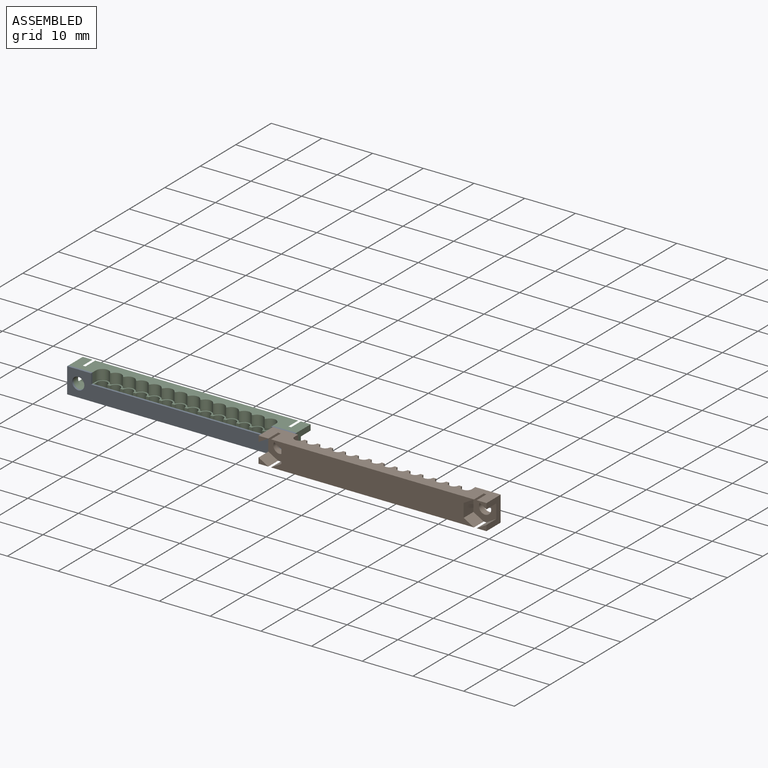
[diagram: assembled view]
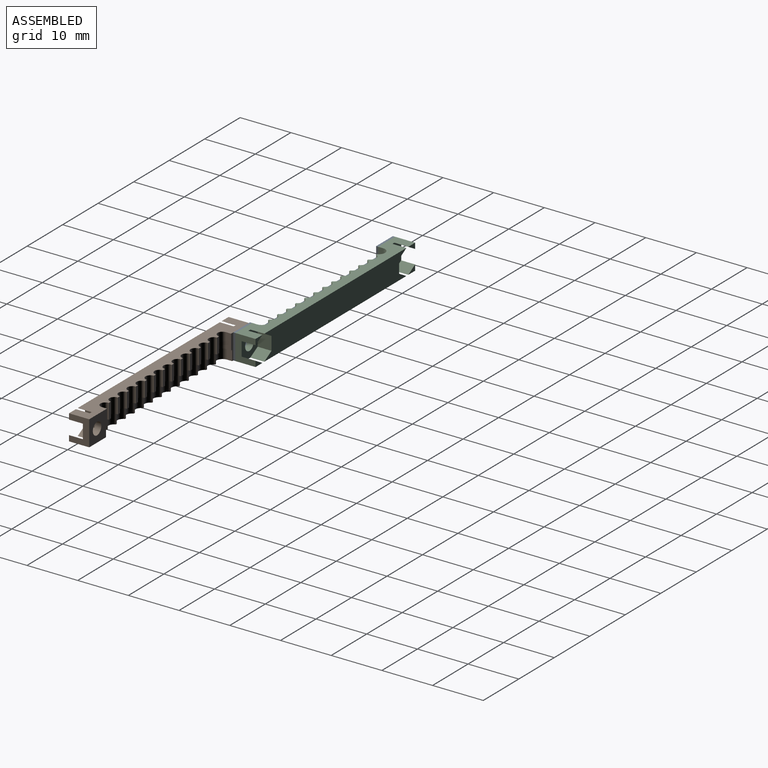
[diagram: assembled view, second angle]
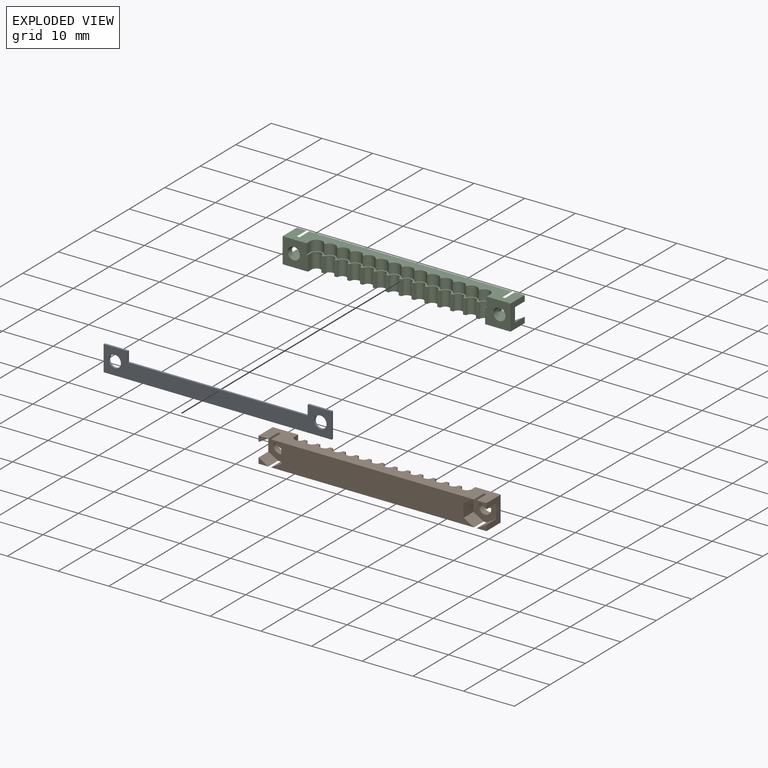
[diagram: exploded view]
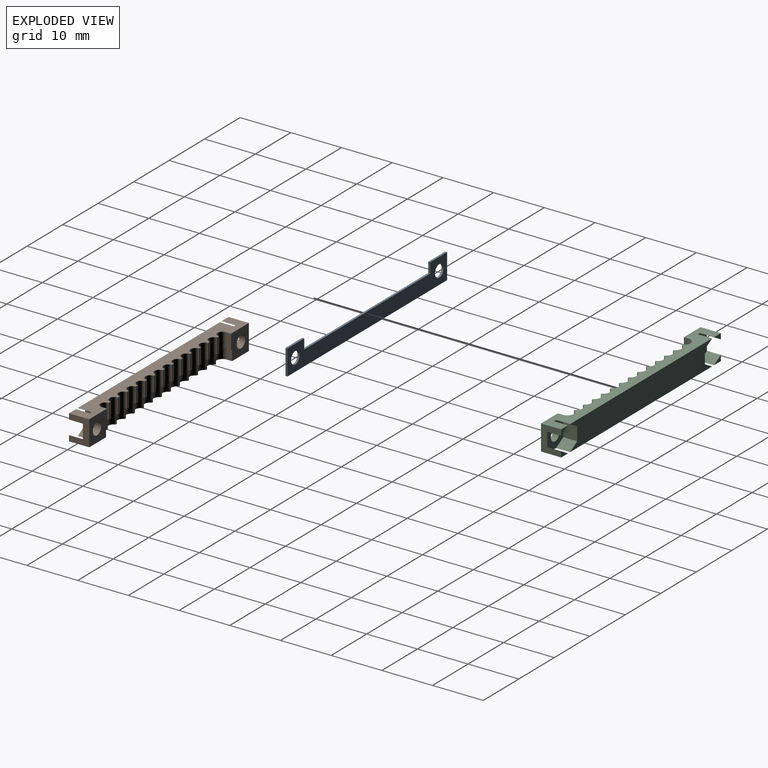
[diagram: exploded view, second angle]
ASSEMBLY  parts=3 mates=2
PART A: 12 faces, bbox 45x0.4x5 mm
  f0: plane 4.72x0.4mm, normal (0,0,1), area 1.9mm2, adj f1,f9,f10,f11
  f1: plane 5x0.4mm, normal (-1,0,0), area 2mm2, adj f0,f2,f10,f11
  f2: plane 44.96x0.4mm, normal (0,0,-1), area 18mm2, adj f1,f3,f10,f11
  f3: plane 5x0.4mm, normal (1,0,0), area 2mm2, adj f2,f4,f10,f11
  f4: plane 4.72x0.4mm, normal (0,0,1), area 1.9mm2, adj f3,f5,f10,f11
  f5: plane 2x0.4mm, normal (-1,0,0), area 0.8mm2, adj f4,f6,f10,f11
  f6: plane 35.52x0.4mm, normal (0,0,1), area 14.2mm2, adj f5,f9,f10,f11
  f7: cylinder r=1.2mm len=2.4mm, axis (0,1,0), area 3mm2, adj f10,f11
  f8: cylinder r=1.2mm len=2.4mm, axis (0,1,0), area 3mm2, adj f10,f11
  f9: plane 2x0.4mm, normal (1,0,0), area 0.8mm2, adj f0,f6,f10,f11
  f10: plane 44.96x5mm, normal (0,-1,0), area 144.7mm2, adj f0,f1,f2,f3,f4,f5,f6,f7
  f11: plane 44.96x5mm, normal (0,1,0), area 144.7mm2, adj f0,f1,f2,f3,f4,f5,f6,f7
PART B: 84 faces, bbox 45x5x4 mm
  f0: plane 1.93x1.11mm, normal (0,0,1), area 1.1mm2, adj f31,f35,f70
  f1: plane 40.02x5mm, normal (0,0,1), area 184.6mm2, adj f34,f35,f65,f68,f69,f71,f73,f74
  f2: plane 1.93x1.11mm, normal (0,0,1), area 1.1mm2, adj f33,f35,f66
  f3: plane 1.93x1.11mm, normal (0,0,1), area 1.1mm2, adj f33,f34,f64
  f4: plane 3x0.6mm, normal (0,0,-1), area 1.8mm2, adj f5,f30,f35,f36
  f5: cylinder r=0.97mm len=3mm, axis (0,1,0), area 9.1mm2, adj f4,f6,f35,f36
  f6: plane 3x0.6mm, normal (0,0,-1), area 1.8mm2, adj f5,f7,f35,f36
  f7: cylinder r=0.97mm len=3mm, axis (0,1,0), area 9.1mm2, adj f6,f8,f35,f36
  f8: plane 3x0.6mm, normal (0,0,-1), area 1.8mm2, adj f7,f9,f35,f36
  f9: cylinder r=0.97mm len=3mm, axis (0,1,0), area 9.1mm2, adj f8,f10,f35,f36
  f10: plane 3x0.6mm, normal (0,0,-1), area 1.8mm2, adj f9,f11,f35,f36
  f11: cylinder r=0.97mm len=3mm, axis (0,1,0), area 9.1mm2, adj f10,f12,f35,f36
  f12: plane 3x0.6mm, normal (0,0,-1), area 1.8mm2, adj f11,f13,f35,f36
  f13: cylinder r=0.97mm len=3mm, axis (0,1,0), area 9.1mm2, adj f12,f14,f35,f36
  f14: plane 3x0.6mm, normal (0,0,-1), area 1.8mm2, adj f13,f15,f35,f36
  f15: cylinder r=0.97mm len=3mm, axis (0,1,0), area 9.1mm2, adj f14,f16,f35,f36
  f16: plane 3x0.6mm, normal (0,0,-1), area 1.8mm2, adj f15,f17,f35,f36
  f17: cylinder r=0.97mm len=3mm, axis (0,1,0), area 9.1mm2, adj f16,f18,f35,f36
  f18: plane 3x0.6mm, normal (0,0,-1), area 1.8mm2, adj f17,f19,f35,f36
  f19: cylinder r=0.97mm len=3mm, axis (0,1,0), area 9.1mm2, adj f18,f20,f35,f36
  f20: plane 3x0.6mm, normal (0,0,-1), area 1.8mm2, adj f19,f21,f35,f36
  f21: cylinder r=0.97mm len=3mm, axis (0,1,0), area 9.1mm2, adj f20,f22,f35,f36
  f22: plane 3x0.6mm, normal (0,0,-1), area 1.8mm2, adj f21,f23,f35,f36
  f23: cylinder r=0.97mm len=3mm, axis (0,1,0), area 9.1mm2, adj f22,f24,f35,f36
  f24: plane 3x0.6mm, normal (0,0,-1), area 1.8mm2, adj f23,f25,f35,f36
  f25: cylinder r=0.97mm len=3mm, axis (0,1,0), area 9.1mm2, adj f24,f26,f35,f36
  f26: plane 3x0.6mm, normal (0,0,-1), area 1.8mm2, adj f25,f27,f35,f36
  f27: cylinder r=0.97mm len=3mm, axis (0,1,0), area 9.1mm2, adj f26,f28,f35,f36
  f28: plane 3x0.6mm, normal (0,0,-1), area 1.8mm2, adj f27,f29,f35,f36
  f29: cylinder r=0.97mm len=3mm, axis (0,1,0), area 9.1mm2, adj f28,f35,f36,f82
  f30: cylinder r=0.97mm len=3mm, axis (0,1,0), area 9.1mm2, adj f4,f35,f36,f79
  f31: plane 5x4mm, normal (1,0,0), area 12.4mm2, adj f0,f32,f34,f35,f70,f72,f75,f83
  f32: plane 1.93x1.11mm, normal (0,0,1), area 1.1mm2, adj f31,f34,f75
  f33: plane 5x4mm, normal (-1,0,0), area 12.4mm2, adj f2,f3,f34,f35,f64,f66,f67,f80
  f34: plane 44.96x4mm, normal (0,-1,0), area 106.3mm2, adj f1,f3,f31,f32,f33,f37,f38,f39
  f35: plane 44.96x4mm, normal (0,1,0), area 121.2mm2, adj f0,f1,f2,f4,f5,f6,f7,f8
  f36: plane 35.52x2.25mm, normal (0,-1,0), area 14.9mm2, adj f4,f5,f6,f7,f8,f9,f10,f11
  f37: cylinder r=1.25mm len=2.4mm, axis (0,-1,0), area 6.8mm2, adj f34,f36,f39,f81
  f38: cylinder r=1.25mm len=2.4mm, axis (0,-1,0), area 6.8mm2, adj f34,f36,f63,f78
  f39: plane 2x0.25mm, normal (0,0,-1), area 0.5mm2, adj f34,f36,f37,f40
  f40: cylinder r=1.25mm len=2.29mm, axis (0,-1,0), area 5.8mm2, adj f34,f36,f39,f41
  f41: plane 2x0.25mm, normal (0,0,-1), area 0.5mm2, adj f34,f36,f40,f42
  f42: cylinder r=1.25mm len=2.29mm, axis (0,-1,0), area 5.8mm2, adj f34,f36,f41,f43
  f43: plane 2x0.25mm, normal (0,0,-1), area 0.5mm2, adj f34,f36,f42,f44
  f44: cylinder r=1.25mm len=2.29mm, axis (0,-1,0), area 5.8mm2, adj f34,f36,f43,f45
  f45: plane 2x0.25mm, normal (0,0,-1), area 0.5mm2, adj f34,f36,f44,f46
  f46: cylinder r=1.25mm len=2.29mm, axis (0,-1,0), area 5.8mm2, adj f34,f36,f45,f47
  f47: plane 2x0.25mm, normal (0,0,-1), area 0.5mm2, adj f34,f36,f46,f48
  f48: cylinder r=1.25mm len=2.29mm, axis (0,-1,0), area 5.8mm2, adj f34,f36,f47,f49
  f49: plane 2x0.25mm, normal (0,0,-1), area 0.5mm2, adj f34,f36,f48,f50
  f50: cylinder r=1.25mm len=2.29mm, axis (0,-1,0), area 5.8mm2, adj f34,f36,f49,f51
  f51: plane 2x0.25mm, normal (0,0,-1), area 0.5mm2, adj f34,f36,f50,f52
  f52: cylinder r=1.25mm len=2.29mm, axis (0,-1,0), area 5.8mm2, adj f34,f36,f51,f53
  f53: plane 2x0.25mm, normal (0,0,-1), area 0.5mm2, adj f34,f36,f52,f54
  f54: cylinder r=1.25mm len=2.29mm, axis (0,-1,0), area 5.8mm2, adj f34,f36,f53,f55
  f55: plane 2x0.25mm, normal (0,0,-1), area 0.5mm2, adj f34,f36,f54,f56
  f56: cylinder r=1.25mm len=2.29mm, axis (0,-1,0), area 5.8mm2, adj f34,f36,f55,f57
  f57: plane 2x0.25mm, normal (0,0,-1), area 0.5mm2, adj f34,f36,f56,f58
  f58: cylinder r=1.25mm len=2.29mm, axis (0,-1,0), area 5.8mm2, adj f34,f36,f57,f59
  f59: plane 2x0.25mm, normal (0,0,-1), area 0.5mm2, adj f34,f36,f58,f60
  f60: cylinder r=1.25mm len=2.29mm, axis (0,-1,0), area 5.8mm2, adj f34,f36,f59,f61
  f61: plane 2x0.25mm, normal (0,0,-1), area 0.5mm2, adj f34,f36,f60,f62
  f62: cylinder r=1.25mm len=2.29mm, axis (0,-1,0), area 5.8mm2, adj f34,f36,f61,f63
  f63: plane 2x0.25mm, normal (0,0,-1), area 0.5mm2, adj f34,f36,f38,f62
  f64: plane 2.75x1.93mm, normal (0.5,0.87,0), area 6.1mm2, adj f3,f33,f34,f67
  f65: plane 2.75x2.03mm, normal (-0.5,-0.87,0), area 6.4mm2, adj f1,f35,f67,f68
  f66: plane 2.75x1.93mm, normal (0.5,-0.87,0), area 6.1mm2, adj f2,f33,f35,f67
  f67: plane 5x4.5mm, normal (0,0,1), area 13.4mm2, adj f33,f34,f35,f64,f65,f66,f68,f69
  f68: plane 2.75x2.66mm, normal (-1,0,0), area 7.3mm2, adj f1,f65,f67,f69
  f69: plane 2.75x2.03mm, normal (-0.5,0.87,0), area 6.4mm2, adj f1,f34,f67,f68
  f70: plane 2.75x1.93mm, normal (-0.5,-0.87,0), area 6.1mm2, adj f0,f31,f35,f72
  f71: plane 2.75x2.03mm, normal (0.5,-0.87,0), area 6.4mm2, adj f1,f35,f72,f73
  f72: plane 5x4.5mm, normal (0,0,1), area 13.4mm2, adj f31,f34,f35,f70,f71,f73,f74,f75
  f73: plane 2.75x2.66mm, normal (1,0,0), area 7.3mm2, adj f1,f71,f72,f74
  f74: plane 2.75x2.03mm, normal (0.5,0.87,0), area 6.4mm2, adj f1,f34,f72,f73
  f75: plane 2.75x1.93mm, normal (-0.5,0.87,0), area 6.1mm2, adj f31,f32,f34,f72
  f76: cylinder r=1.2mm len=2.4mm, axis (0,0,-1), area 9.4mm2, adj f72,f83
  f77: cylinder r=1.2mm len=2.4mm, axis (0,0,-1), area 9.4mm2, adj f67,f80
  f78: plane 2x1mm, normal (1,0,0), area 2mm2, adj f34,f36,f38,f80
  f79: plane 3x1mm, normal (1,0,0), area 3mm2, adj f30,f35,f36,f80
  f80: plane 5x5mm, normal (0,0,-1), area 19.9mm2, adj f33,f34,f35,f36,f77,f78,f79
  f81: plane 2x1mm, normal (-1,0,0), area 2mm2, adj f34,f36,f37,f83
  f82: plane 3x1mm, normal (-1,0,0), area 3mm2, adj f29,f35,f36,f83
  f83: plane 5x5mm, normal (0,0,-1), area 19.9mm2, adj f31,f34,f35,f36,f76,f81,f82
PART C: same geometry as B
PLACE A t=(-3.51,-25.65,-9.31)mm
PLACE B rot(axis=(1,0,0),90deg) t=(37.05,-25.78,-6.81)mm
PLACE C rot(axis=(-1,0,0),90deg) t=(-3.51,-25.92,-11.81)mm
MATE fastened C.f77 <-> A.f7  axis (0,-1,0) through (-23.79,-25.65,-9.31)mm
MATE fastened B.f77 <-> A.f8  axis (0,1,0) through (16.77,-26.05,-9.31)mm
